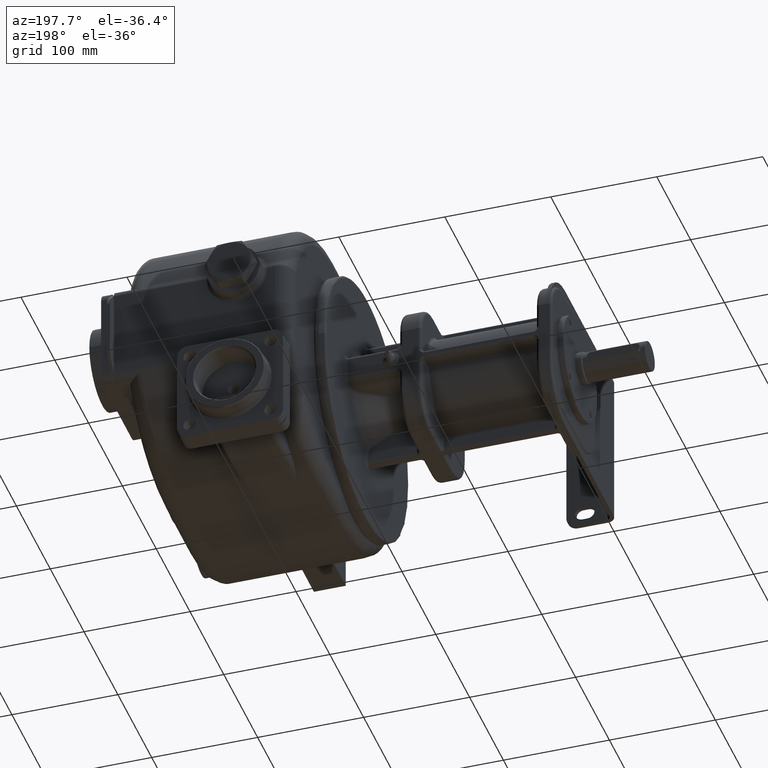
[diagram: clean part render]
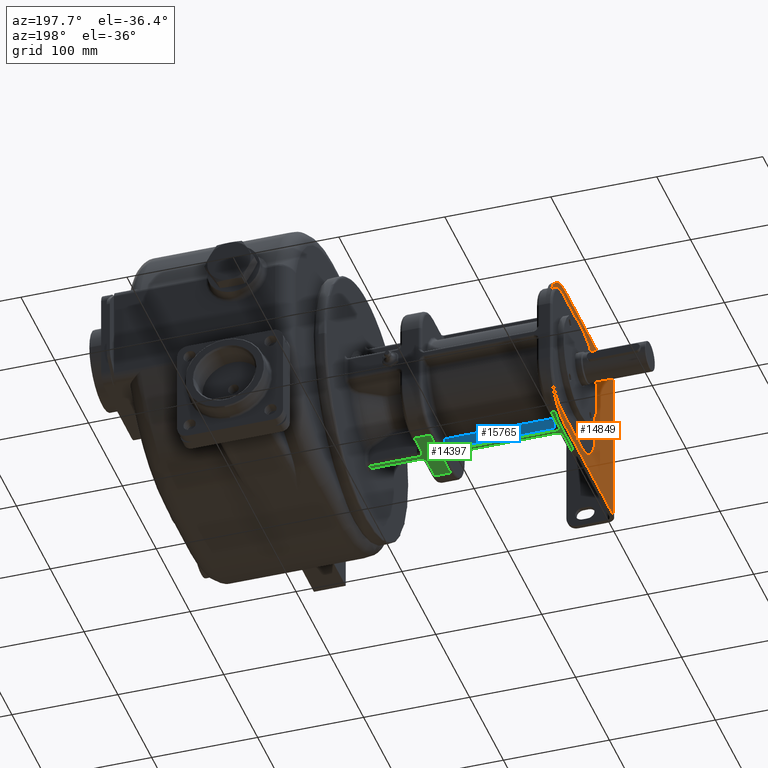
[diagram: same view with three faces highlighted in distinct colors, each labeled with its STEP entity id]
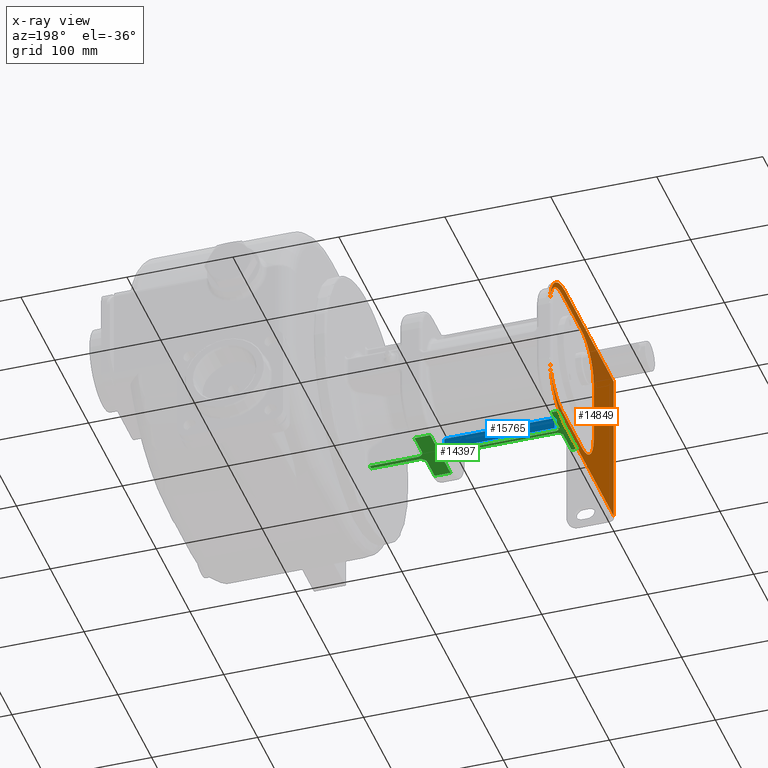
[diagram: x-ray of the same camera — body ghosted, the three highlighted faces saturated]
A machine part, auxiliary view with three faces highlighted in distinct colors.
The next image is the same camera in x-ray (body ghosted, the three faces saturated) — at least one of them is partly hidden behind the body in this view.
Their STEP definitions:

[orange] entity #14849 — the highlighted planar face has unit normal (1, 0, 0).
#1172=DIRECTION('',(0.E0,1.597536917567E-14,1.E0));
#1173=VECTOR('',#1172,1.5E2);
#1174=CARTESIAN_POINT('',(-2.705E2,7.999999999998E0,-7.5E1));
#1175=LINE('',#1174,#1173);
#1347=CARTESIAN_POINT('',(-2.705E2,1.52E2,-3.E1));
#1348=DIRECTION('',(1.E0,0.E0,0.E0));
#1349=DIRECTION('',(0.E0,-2.336896108722E-14,-1.E0));
#1350=AXIS2_PLACEMENT_3D('',#1347,#1348,#1349);
#1352=DIRECTION('',(0.E0,0.E0,1.E0));
#1353=VECTOR('',#1352,6.E1);
#1354=CARTESIAN_POINT('',(-2.705E2,1.97E2,-3.E1));
#1355=LINE('',#1354,#1353);
#1356=CARTESIAN_POINT('',(-2.705E2,1.52E2,3.E1));
#1357=DIRECTION('',(1.E0,0.E0,0.E0));
#1358=DIRECTION('',(0.E0,1.E0,-1.594773695817E-14));
#1359=AXIS2_PLACEMENT_3D('',#1356,#1357,#1358);
#1361=DIRECTION('',(0.E0,-1.E0,1.588852506352E-14));
#1362=VECTOR('',#1361,1.44E2);
#1363=CARTESIAN_POINT('',(-2.705E2,1.52E2,7.5E1));
#1364=LINE('',#1363,#1362);
#1365=DIRECTION('',(0.E0,1.E0,-1.588852506352E-14));
#1366=VECTOR('',#1365,1.44E2);
#1367=CARTESIAN_POINT('',(-2.705E2,7.999999999998E0,-7.5E1));
#1368=LINE('',#1367,#1366);
#1369=DIRECTION('',(0.E0,1.634248292248E-14,1.E0));
#1370=VECTOR('',#1369,6.E1);
#1371=CARTESIAN_POINT('',(-2.705E2,6.717157287525E1,-3.E1));
#1372=LINE('',#1371,#1370);
#1378=CARTESIAN_POINT('',(-2.705E2,1.02E2,-3.E1));
#1379=DIRECTION('',(-1.E0,0.E0,0.E0));
#1380=DIRECTION('',(0.E0,4.447468036409E-14,-1.E0));
#1381=AXIS2_PLACEMENT_3D('',#1378,#1379,#1380);
#1388=DIRECTION('',(0.E0,-1.E0,1.586878776531E-14));
#1389=VECTOR('',#1388,6.E1);
#1390=CARTESIAN_POINT('',(-2.705E2,1.62E2,-6.482842712475E1));
#1391=LINE('',#1390,#1389);
#1397=CARTESIAN_POINT('',(-2.705E2,1.62E2,-3.E1));
#1398=DIRECTION('',(-1.E0,0.E0,0.E0));
#1399=DIRECTION('',(0.E0,1.E0,4.427066806884E-14));
#1400=AXIS2_PLACEMENT_3D('',#1397,#1398,#1399);
#1407=DIRECTION('',(0.E0,-1.515824502955E-14,-1.E0));
#1408=VECTOR('',#1407,6.E1);
#1409=CARTESIAN_POINT('',(-2.705E2,1.968284271247E2,3.E1));
#1410=LINE('',#1409,#1408);
#1416=CARTESIAN_POINT('',(-2.705E2,1.62E2,3.E1));
#1417=DIRECTION('',(-1.E0,0.E0,0.E0));
#1418=DIRECTION('',(0.E0,1.632098361985E-14,1.E0));
#1419=AXIS2_PLACEMENT_3D('',#1416,#1417,#1418);
#1426=DIRECTION('',(0.E0,1.E0,-1.586878776531E-14));
#1427=VECTOR('',#1426,6.E1);
#1428=CARTESIAN_POINT('',(-2.705E2,1.02E2,6.482842712475E1));
#1429=LINE('',#1428,#1427);
#1435=CARTESIAN_POINT('',(-2.705E2,1.02E2,3.E1));
#1436=DIRECTION('',(-1.E0,0.E0,0.E0));
#1437=DIRECTION('',(0.E0,-1.E0,4.610677872607E-14));
#1438=AXIS2_PLACEMENT_3D('',#1435,#1436,#1437);
#13416=CARTESIAN_POINT('',(-2.705E2,1.52E2,-7.5E1));
#13418=VERTEX_POINT('',#13416);
#13423=CARTESIAN_POINT('',(-2.705E2,7.999999999998E0,-7.5E1));
#13424=VERTEX_POINT('',#13423);
#13425=CARTESIAN_POINT('',(-2.705E2,8.000000000001E0,7.5E1));
#13426=VERTEX_POINT('',#13425);
#13427=CARTESIAN_POINT('',(-2.705E2,1.52E2,7.5E1));
#13428=VERTEX_POINT('',#13427);
#13471=CARTESIAN_POINT('',(-2.705E2,1.97E2,-3.E1));
#13472=VERTEX_POINT('',#13471);
#13473=CARTESIAN_POINT('',(-2.705E2,1.97E2,3.E1));
#13474=VERTEX_POINT('',#13473);
#13507=CARTESIAN_POINT('',(-2.705E2,6.717157287525E1,-3.E1));
#13508=CARTESIAN_POINT('',(-2.705E2,6.717157287525E1,3.E1));
#13509=VERTEX_POINT('',#13507);
#13510=VERTEX_POINT('',#13508);
#13511=CARTESIAN_POINT('',(-2.705E2,1.02E2,-6.482842712475E1));
#13512=VERTEX_POINT('',#13511);
#13513=CARTESIAN_POINT('',(-2.705E2,1.62E2,-6.482842712475E1));
#13514=VERTEX_POINT('',#13513);
#13515=CARTESIAN_POINT('',(-2.705E2,1.968284271247E2,-3.E1));
#13516=VERTEX_POINT('',#13515);
#13517=CARTESIAN_POINT('',(-2.705E2,1.968284271247E2,3.E1));
#13518=VERTEX_POINT('',#13517);
#13519=CARTESIAN_POINT('',(-2.705E2,1.62E2,6.482842712475E1));
#13520=VERTEX_POINT('',#13519);
#13521=CARTESIAN_POINT('',(-2.705E2,1.02E2,6.482842712475E1));
#13522=VERTEX_POINT('',#13521);
#14818=CARTESIAN_POINT('',(-2.705E2,1.32E2,0.E0));
#14819=DIRECTION('',(1.E0,0.E0,0.E0));
#14820=DIRECTION('',(0.E0,-1.598721155460E-14,-1.E0));
#14821=AXIS2_PLACEMENT_3D('',#14818,#14819,#14820);
#14822=PLANE('',#14821);
#14823=ORIENTED_EDGE('',*,*,#14811,.T.);
#14824=ORIENTED_EDGE('',*,*,#14501,.T.);
#14825=ORIENTED_EDGE('',*,*,#14572,.T.);
#14826=ORIENTED_EDGE('',*,*,#14585,.T.);
#14827=ORIENTED_EDGE('',*,*,#14615,.F.);
#14828=ORIENTED_EDGE('',*,*,#14799,.T.);
#14829=EDGE_LOOP('',(#14823,#14824,#14825,#14826,#14827,#14828));
#14830=FACE_OUTER_BOUND('',#14829,.F.);
#14832=ORIENTED_EDGE('',*,*,#14831,.T.);
#14834=ORIENTED_EDGE('',*,*,#14833,.T.);
#14836=ORIENTED_EDGE('',*,*,#14835,.T.);
#14838=ORIENTED_EDGE('',*,*,#14837,.T.);
#14840=ORIENTED_EDGE('',*,*,#14839,.T.);
#14842=ORIENTED_EDGE('',*,*,#14841,.T.);
#14844=ORIENTED_EDGE('',*,*,#14843,.T.);
#14846=ORIENTED_EDGE('',*,*,#14845,.T.);
#14847=EDGE_LOOP('',(#14832,#14834,#14836,#14838,#14840,#14842,#14844,#14846));
#14848=FACE_BOUND('',#14847,.F.);
#14849=ADVANCED_FACE('',(#14830,#14848),#14822,.F.);
#1351=CIRCLE('',#1350,4.5E1);
#1360=CIRCLE('',#1359,4.5E1);
#1382=CIRCLE('',#1381,3.482842712475E1);
#1401=CIRCLE('',#1400,3.482842712475E1);
#1420=CIRCLE('',#1419,3.482842712475E1);
#1439=CIRCLE('',#1438,3.482842712475E1);
#14501=EDGE_CURVE('',#13472,#13474,#1355,.T.);
#14572=EDGE_CURVE('',#13474,#13428,#1360,.T.);
#14585=EDGE_CURVE('',#13428,#13426,#1364,.T.);
#14615=EDGE_CURVE('',#13424,#13426,#1175,.T.);
#14799=EDGE_CURVE('',#13424,#13418,#1368,.T.);
#14811=EDGE_CURVE('',#13418,#13472,#1351,.T.);
#14831=EDGE_CURVE('',#13509,#13510,#1372,.T.);
#14833=EDGE_CURVE('',#13510,#13522,#1439,.T.);
#14835=EDGE_CURVE('',#13522,#13520,#1429,.T.);
#14837=EDGE_CURVE('',#13520,#13518,#1420,.T.);
#14839=EDGE_CURVE('',#13518,#13516,#1410,.T.);
#14841=EDGE_CURVE('',#13516,#13514,#1401,.T.);
#14843=EDGE_CURVE('',#13514,#13512,#1391,.T.);
#14845=EDGE_CURVE('',#13512,#13509,#1382,.T.);

[blue] entity #15765 — the highlighted planar face has unit normal (0, -1, 0).
#2107=CARTESIAN_POINT('',(-1.465E2,1.355E2,-6.2E1));
#2108=DIRECTION('',(0.E0,-1.E0,1.598721155460E-14));
#2109=DIRECTION('',(-1.E0,0.E0,0.E0));
#2110=AXIS2_PLACEMENT_3D('',#2107,#2108,#2109);
#2112=DIRECTION('',(0.E0,-1.530327959279E-14,-1.E0));
#2113=VECTOR('',#2112,9.286149827583E0);
#2114=CARTESIAN_POINT('',(-1.515E2,1.355E2,-5.271385017242E1));
#2115=LINE('',#2114,#2113);
#2116=CARTESIAN_POINT('',(-1.525E2,1.355E2,-5.170831654579E1));
#2117=CARTESIAN_POINT('',(-1.524782581544E2,1.355E2,-5.170831662245E1));
#2118=CARTESIAN_POINT('',(-1.524348641030E2,1.355E2,-5.170973848553E1));
#2119=CARTESIAN_POINT('',(-1.523698800143E2,1.355E2,-5.171614602046E1));
#2120=CARTESIAN_POINT('',(-1.523054887060E2,1.355E2,-5.172679679101E1));
#2121=CARTESIAN_POINT('',(-1.522418932856E2,1.355E2,-5.174165202574E1));
#2122=CARTESIAN_POINT('',(-1.521793893363E2,1.355E2,-5.176064895303E1));
#2123=CARTESIAN_POINT('',(-1.521182301524E2,1.355E2,-5.178371247166E1));
#2124=CARTESIAN_POINT('',(-1.520586787359E2,1.355E2,-5.181074830781E1));
#2125=CARTESIAN_POINT('',(-1.520009871171E2,1.355E2,-5.184164670597E1));
#2126=CARTESIAN_POINT('',(-1.519454023308E2,1.355E2,-5.187628109834E1));
#2127=CARTESIAN_POINT('',(-1.518921629714E2,1.355E2,-5.191450906962E1));
#2128=CARTESIAN_POINT('',(-1.518414989546E2,1.355E2,-5.195617246611E1));
#2129=CARTESIAN_POINT('',(-1.517936301902E2,1.355E2,-5.200109794448E1));
#2130=CARTESIAN_POINT('',(-1.517487655520E2,1.355E2,-5.204909753659E1));
#2131=CARTESIAN_POINT('',(-1.517071018958E2,1.355E2,-5.209996920257E1));
#2132=CARTESIAN_POINT('',(-1.516688229807E2,1.355E2,-5.215349760498E1));
#2133=CARTESIAN_POINT('',(-1.516340984819E2,1.355E2,-5.220945488991E1));
#2134=CARTESIAN_POINT('',(-1.516030829776E2,1.355E2,-5.226760181405E1));
#2135=CARTESIAN_POINT('',(-1.515759152750E2,1.355E2,-5.232768804121E1));
#2136=CARTESIAN_POINT('',(-1.515527169927E2,1.355E2,-5.238945548466E1));
#2137=CARTESIAN_POINT('',(-1.515335932746E2,1.355E2,-5.245263292802E1));
#2138=CARTESIAN_POINT('',(-1.515186289083E2,1.355E2,-5.251695589187E1));
#2139=CARTESIAN_POINT('',(-1.515078942408E2,1.355E2,-5.258211758478E1));
#2140=CARTESIAN_POINT('',(-1.515014341365E2,1.355E2,-5.264789914491E1));
#2141=CARTESIAN_POINT('',(-1.515000000770E2,1.355E2,-5.269183453651E1));
#2142=CARTESIAN_POINT('',(-1.515E2,1.355E2,-5.271385017242E1));
#2144=DIRECTION('',(1.E0,0.E0,0.E0));
#2145=VECTOR('',#2144,1.02E2);
#2146=CARTESIAN_POINT('',(-2.545E2,1.355E2,-5.170831654579E1));
#2147=LINE('',#2146,#2145);
#2148=CARTESIAN_POINT('',(-2.555E2,1.355E2,-5.271385017242E1));
#2149=CARTESIAN_POINT('',(-2.554999999241E2,1.355E2,-5.269183456945E1));
#2150=CARTESIAN_POINT('',(-2.554985658649E2,1.355E2,-5.264789923762E1));
#2151=CARTESIAN_POINT('',(-2.554921057953E2,1.355E2,-5.258211786401E1));
#2152=CARTESIAN_POINT('',(-2.554813711363E2,1.355E2,-5.251695610908E1));
#2153=CARTESIAN_POINT('',(-2.554664067854E2,1.355E2,-5.245263315271E1));
#2154=CARTESIAN_POINT('',(-2.554472830812E2,1.355E2,-5.238945570093E1));
#2155=CARTESIAN_POINT('',(-2.554240848111E2,1.355E2,-5.232768824866E1));
#2156=CARTESIAN_POINT('',(-2.553969171214E2,1.355E2,-5.226760201436E1));
#2157=CARTESIAN_POINT('',(-2.553659016272E2,1.355E2,-5.220945507887E1));
#2158=CARTESIAN_POINT('',(-2.553311771423E2,1.355E2,-5.215349778890E1));
#2159=CARTESIAN_POINT('',(-2.552928982291E2,1.355E2,-5.209996936510E1));
#2160=CARTESIAN_POINT('',(-2.552512345931E2,1.355E2,-5.204909770455E1));
#2161=CARTESIAN_POINT('',(-2.552063700220E2,1.355E2,-5.200109815847E1));
#2162=CARTESIAN_POINT('',(-2.551585012599E2,1.355E2,-5.195617265378E1));
#2163=CARTESIAN_POINT('',(-2.551078372405E2,1.355E2,-5.191450923281E1));
#2164=CARTESIAN_POINT('',(-2.550545978956E2,1.355E2,-5.187628125026E1));
#2165=CARTESIAN_POINT('',(-2.549990131135E2,1.355E2,-5.184164683958E1));
#2166=CARTESIAN_POINT('',(-2.549413215019E2,1.355E2,-5.181074842562E1));
#2167=CARTESIAN_POINT('',(-2.548817700887E2,1.355E2,-5.178371257202E1));
#2168=CARTESIAN_POINT('',(-2.548206109094E2,1.355E2,-5.176064903711E1));
#2169=CARTESIAN_POINT('',(-2.547581069635E2,1.355E2,-5.174165209250E1));
#2170=CARTESIAN_POINT('',(-2.546945115314E2,1.355E2,-5.172679683970E1));
#2171=CARTESIAN_POINT('',(-2.546301202794E2,1.355E2,-5.171614605849E1));
#2172=CARTESIAN_POINT('',(-2.545651359959E2,1.355E2,-5.170973848710E1));
#2173=CARTESIAN_POINT('',(-2.545217418805E2,1.355E2,-5.170831662350E1));
#2174=CARTESIAN_POINT('',(-2.545E2,1.355E2,-5.170831654579E1));
#2176=DIRECTION('',(0.E0,1.530327959279E-14,1.E0));
#2177=VECTOR('',#2176,9.286149827583E0);
#2178=CARTESIAN_POINT('',(-2.555E2,1.355E2,-6.2E1));
#2179=LINE('',#2178,#2177);
#2180=CARTESIAN_POINT('',(-2.605E2,1.355E2,-6.2E1));
#2181=DIRECTION('',(0.E0,-1.E0,1.598721155460E-14));
#2182=DIRECTION('',(9.797958972550E-1,0.E0,-1.999999993055E-1));
#2183=AXIS2_PLACEMENT_3D('',#2180,#2181,#2182);
#2185=DIRECTION('',(-1.E0,5.493847008595E-12,0.E0));
#2186=VECTOR('',#2185,1.042020410200E2);
#2187=CARTESIAN_POINT('',(-1.513989794900E2,1.355000000110E2,-6.3E1));
#2188=LINE('',#2187,#2186);
#13182=CARTESIAN_POINT('',(-1.515E2,1.355E2,-5.271385017242E1));
#13183=CARTESIAN_POINT('',(-1.515E2,1.355E2,-6.2E1));
#13184=VERTEX_POINT('',#13182);
#13185=VERTEX_POINT('',#13183);
#13189=CARTESIAN_POINT('',(-2.545E2,1.355E2,-5.170831654579E1));
#13190=CARTESIAN_POINT('',(-1.525E2,1.355E2,-5.170831654579E1));
#13191=VERTEX_POINT('',#13189);
#13192=VERTEX_POINT('',#13190);
#13196=CARTESIAN_POINT('',(-2.555E2,1.355E2,-6.2E1));
#13197=CARTESIAN_POINT('',(-2.555E2,1.355E2,-5.271385017242E1));
#13198=VERTEX_POINT('',#13196);
#13199=VERTEX_POINT('',#13197);
#13250=CARTESIAN_POINT('',(-1.513989794863E2,1.355E2,-6.299999999652E1));
#13251=VERTEX_POINT('',#13250);
#13278=CARTESIAN_POINT('',(-2.556010205137E2,1.355E2,-6.299999999653E1));
#13279=VERTEX_POINT('',#13278);
#15743=CARTESIAN_POINT('',(-2.07E2,1.355E2,-6.798738169020E-14));
#15744=DIRECTION('',(0.E0,-1.E0,1.592597921464E-14));
#15745=DIRECTION('',(1.E0,0.E0,0.E0));
#15746=AXIS2_PLACEMENT_3D('',#15743,#15744,#15745);
#15747=PLANE('',#15746);
#15749=ORIENTED_EDGE('',*,*,#15748,.F.);
#15751=ORIENTED_EDGE('',*,*,#15750,.F.);
#15753=ORIENTED_EDGE('',*,*,#15752,.F.);
#15755=ORIENTED_EDGE('',*,*,#15754,.F.);
#15757=ORIENTED_EDGE('',*,*,#15756,.F.);
#15759=ORIENTED_EDGE('',*,*,#15758,.F.);
#15760=ORIENTED_EDGE('',*,*,#15733,.F.);
#15762=ORIENTED_EDGE('',*,*,#15761,.F.);
#15763=EDGE_LOOP('',(#15749,#15751,#15753,#15755,#15757,#15759,#15760,#15762));
#15764=FACE_OUTER_BOUND('',#15763,.F.);
#15765=ADVANCED_FACE('',(#15764),#15747,.F.);
#2111=CIRCLE('',#2110,5.E0);
#2143=B_SPLINE_CURVE_WITH_KNOTS('',3,(#2116,#2117,#2118,#2119,#2120,#2121,#2122,
#2123,#2124,#2125,#2126,#2127,#2128,#2129,#2130,#2131,#2132,#2133,#2134,#2135,
#2136,#2137,#2138,#2139,#2140,#2141,#2142),.UNSPECIFIED.,.F.,.F.,(4,1,1,1,1,1,1,
1,1,1,1,1,1,1,1,1,1,1,1,1,1,1,1,1,4),(0.E0,4.166666666667E-2,8.333333333333E-2,
1.25E-1,1.666666666667E-1,2.083333333333E-1,2.5E-1,2.916666666667E-1,
3.333333333333E-1,3.75E-1,4.166666666667E-1,4.583333333333E-1,5.E-1,
5.416666666667E-1,5.833333333333E-1,6.25E-1,6.666666666667E-1,7.083333333333E-1,
7.5E-1,7.916666666667E-1,8.333333333333E-1,8.75E-1,9.166666666667E-1,
9.583333333333E-1,1.E0),.UNSPECIFIED.);
#2175=B_SPLINE_CURVE_WITH_KNOTS('',3,(#2148,#2149,#2150,#2151,#2152,#2153,#2154,
#2155,#2156,#2157,#2158,#2159,#2160,#2161,#2162,#2163,#2164,#2165,#2166,#2167,
#2168,#2169,#2170,#2171,#2172,#2173,#2174),.UNSPECIFIED.,.F.,.F.,(4,1,1,1,1,1,1,
1,1,1,1,1,1,1,1,1,1,1,1,1,1,1,1,1,4),(0.E0,4.166666666667E-2,8.333333333333E-2,
1.25E-1,1.666666666667E-1,2.083333333333E-1,2.5E-1,2.916666666667E-1,
3.333333333333E-1,3.75E-1,4.166666666667E-1,4.583333333333E-1,5.E-1,
5.416666666667E-1,5.833333333333E-1,6.25E-1,6.666666666667E-1,7.083333333333E-1,
7.5E-1,7.916666666667E-1,8.333333333333E-1,8.75E-1,9.166666666667E-1,
9.583333333333E-1,1.E0),.UNSPECIFIED.);
#2184=CIRCLE('',#2183,5.E0);
#15733=EDGE_CURVE('',#13279,#13198,#2184,.T.);
#15748=EDGE_CURVE('',#13185,#13251,#2111,.T.);
#15750=EDGE_CURVE('',#13184,#13185,#2115,.T.);
#15752=EDGE_CURVE('',#13192,#13184,#2143,.T.);
#15754=EDGE_CURVE('',#13191,#13192,#2147,.T.);
#15756=EDGE_CURVE('',#13199,#13191,#2175,.T.);
#15758=EDGE_CURVE('',#13198,#13199,#2179,.T.);
#15761=EDGE_CURVE('',#13251,#13279,#2188,.T.);

[green] entity #14397 — the highlighted planar face has unit normal (0, 0, -1).
#245=DIRECTION('',(0.E0,1.E0,-1.102066284036E-14));
#246=VECTOR('',#245,2.45E1);
#247=CARTESIAN_POINT('',(-1.465E2,1.02E2,-6.5E1));
#248=LINE('',#247,#246);
#576=DIRECTION('',(0.E0,-1.E0,1.160069772670E-14));
#577=VECTOR('',#576,2.45E1);
#578=CARTESIAN_POINT('',(-2.605E2,1.265E2,-6.5E1));
#579=LINE('',#578,#577);
#585=DIRECTION('',(0.E0,-1.E0,0.E0));
#586=VECTOR('',#585,6.000000000002E1);
#587=CARTESIAN_POINT('',(-2.665E2,1.62E2,-6.5E1));
#588=LINE('',#587,#586);
#589=CARTESIAN_POINT('',(-2.605E2,1.265E2,-6.5E1));
#590=CARTESIAN_POINT('',(-2.604182547031E2,1.266634909598E2,-6.499999879545E1));
#591=CARTESIAN_POINT('',(-2.602631731254E2,1.269732178097E2,-6.500000055903E1));
#592=CARTESIAN_POINT('',(-2.600470038275E2,1.273840061154E2,-6.499999985021E1));
#593=CARTESIAN_POINT('',(-2.598480416598E2,1.277343880913E2,-6.500000004014E1));
#594=CARTESIAN_POINT('',(-2.596643927898E2,1.280315606032E2,-6.499999998925E1));
#595=CARTESIAN_POINT('',(-2.594889619837E2,1.282919299203E2,-6.500000000288E1));
#596=CARTESIAN_POINT('',(-2.593180421730E2,1.285244223210E2,-6.499999999923E1));
#597=CARTESIAN_POINT('',(-2.591488410167E2,1.287354172071E2,-6.500000000021E1));
#598=CARTESIAN_POINT('',(-2.589794571532E2,1.289290228906E2,-6.499999999994E1));
#599=CARTESIAN_POINT('',(-2.588089690379E2,1.291075678456E2,-6.500000000001E1));
#600=CARTESIAN_POINT('',(-2.586366739100E2,1.292727667299E2,-6.5E1));
#601=CARTESIAN_POINT('',(-2.584621852719E2,1.294257411037E2,-6.5E1));
#602=CARTESIAN_POINT('',(-2.582852648170E2,1.295672996332E2,-6.5E1));
#603=CARTESIAN_POINT('',(-2.581058046579E2,1.296980105987E2,-6.5E1));
#604=CARTESIAN_POINT('',(-2.579237848516E2,1.298182817060E2,-6.5E1));
#605=CARTESIAN_POINT('',(-2.577392567426E2,1.299284030574E2,-6.5E1));
#606=CARTESIAN_POINT('',(-2.575523291172E2,1.300285797303E2,-6.5E1));
#607=CARTESIAN_POINT('',(-2.573631578686E2,1.301189565223E2,-6.5E1));
#608=CARTESIAN_POINT('',(-2.571719390037E2,1.301996339311E2,-6.499999999999E1));
#609=CARTESIAN_POINT('',(-2.569788980672E2,1.302706825538E2,-6.500000000002E1));
#610=CARTESIAN_POINT('',(-2.567842909096E2,1.303321508085E2,-6.499999999991E1));
#611=CARTESIAN_POINT('',(-2.565883979946E2,1.303840742784E2,-6.500000000035E1));
#612=CARTESIAN_POINT('',(-2.563915030891E2,1.304264852449E2,-6.499999999870E1));
#613=CARTESIAN_POINT('',(-2.561939541262E2,1.304594038068E2,-6.500000000485E1));
#614=CARTESIAN_POINT('',(-2.559960616154E2,1.304828663736E2,-6.499999998192E1));
#615=CARTESIAN_POINT('',(-2.557981606828E2,1.304968998557E2,-6.500000006748E1));
#616=CARTESIAN_POINT('',(-2.556666834676E2,1.304999998010E2,-6.499999985459E1));
#617=CARTESIAN_POINT('',(-2.556010205144E2,1.305E2,-6.499999997601E1));
#619=DIRECTION('',(1.E0,0.E0,1.395132199097E-11));
#620=VECTOR('',#619,1.042020410289E2);
#621=CARTESIAN_POINT('',(-2.556010205144E2,1.305E2,-6.499999997601E1));
#622=LINE('',#621,#620);
#623=CARTESIAN_POINT('',(-1.513989794856E2,1.305E2,-6.499999997456E1));
#624=CARTESIAN_POINT('',(-1.513333200221E2,1.304999997990E2,-6.499999985100E1));
#625=CARTESIAN_POINT('',(-1.512018497458E2,1.304969001995E2,-6.500000006915E1));
#626=CARTESIAN_POINT('',(-1.510039585526E2,1.304828681239E2,-6.499999998147E1));
#627=CARTESIAN_POINT('',(-1.508060767545E2,1.304594080271E2,-6.500000000496E1));
#628=CARTESIAN_POINT('',(-1.506085392158E2,1.304264931339E2,-6.499999999867E1));
#629=CARTESIAN_POINT('',(-1.504116551596E2,1.303840868531E2,-6.500000000036E1));
#630=CARTESIAN_POINT('',(-1.502157730048E2,1.303321691758E2,-6.499999999990E1));
#631=CARTESIAN_POINT('',(-1.500211763642E2,1.302707078017E2,-6.500000000003E1));
#632=CARTESIAN_POINT('',(-1.498281456602E2,1.301996671541E2,-6.499999999999E1));
#633=CARTESIAN_POINT('',(-1.496369367142E2,1.301189988346E2,-6.5E1));
#634=CARTESIAN_POINT('',(-1.494477750507E2,1.300286322748E2,-6.5E1));
#635=CARTESIAN_POINT('',(-1.492608566506E2,1.299284670174E2,-6.5E1));
#636=CARTESIAN_POINT('',(-1.490763374168E2,1.298183583061E2,-6.5E1));
#637=CARTESIAN_POINT('',(-1.488943261492E2,1.296981011448E2,-6.5E1));
#638=CARTESIAN_POINT('',(-1.487148742240E2,1.295674055512E2,-6.5E1));
#639=CARTESIAN_POINT('',(-1.485379617638E2,1.294258640059E2,-6.5E1));
#640=CARTESIAN_POINT('',(-1.483634809442E2,1.292729084298E2,-6.5E1));
#641=CARTESIAN_POINT('',(-1.481911938408E2,1.291077307758E2,-6.500000000001E1));
#642=CARTESIAN_POINT('',(-1.480207134231E2,1.289292091399E2,-6.499999999994E1));
#643=CARTESIAN_POINT('',(-1.478513396380E2,1.287356325058E2,-6.500000000021E1));
#644=CARTESIAN_POINT('',(-1.476821459502E2,1.285246669827E2,-6.499999999923E1));
#645=CARTESIAN_POINT('',(-1.475112429191E2,1.282922198404E2,-6.500000000287E1));
#646=CARTESIAN_POINT('',(-1.473358335280E2,1.280319122157E2,-6.499999998928E1));
#647=CARTESIAN_POINT('',(-1.471521342776E2,1.277346887541E2,-6.500000004001E1));
#648=CARTESIAN_POINT('',(-1.469531127541E2,1.273842228998E2,-6.499999985067E1));
#649=CARTESIAN_POINT('',(-1.467368869461E2,1.269733375705E2,-6.500000055730E1));
#650=CARTESIAN_POINT('',(-1.465817660809E2,1.266635325279E2,-6.499999879918E1));
#651=CARTESIAN_POINT('',(-1.465E2,1.265E2,-6.5E1));
#653=DIRECTION('',(1.E0,2.804275330467E-13,0.E0));
#654=VECTOR('',#653,1.5E1);
#655=CARTESIAN_POINT('',(-1.465E2,1.02E2,-6.5E1));
#656=LINE('',#655,#654);
#657=DIRECTION('',(9.521272659331E-13,1.E0,0.E0));
#658=VECTOR('',#657,2.199999999966E1);
#659=CARTESIAN_POINT('',(-1.315E2,1.02E2,-6.5E1));
#660=LINE('',#659,#658);
#661=CARTESIAN_POINT('',(-1.255E2,1.24E2,-6.5E1));
#662=DIRECTION('',(0.E0,0.E0,1.E0));
#663=DIRECTION('',(1.657933050107E-14,1.E0,0.E0));
#664=AXIS2_PLACEMENT_3D('',#661,#662,#663);
#666=DIRECTION('',(-1.E0,-4.148306389764E-12,0.E0));
#667=VECTOR('',#666,4.499999999988E1);
#668=CARTESIAN_POINT('',(-8.05E1,1.300000000002E2,-6.5E1));
#669=LINE('',#668,#667);
#670=DIRECTION('',(0.E0,-1.E0,0.E0));
#671=VECTOR('',#670,3.999999999809E0);
#672=CARTESIAN_POINT('',(-8.05E1,1.34E2,-6.5E1));
#673=LINE('',#672,#671);
#674=DIRECTION('',(-1.E0,1.263818679347E-12,0.E0));
#675=VECTOR('',#674,4.499999999969E1);
#676=CARTESIAN_POINT('',(-8.05E1,1.34E2,-6.5E1));
#677=LINE('',#676,#675);
#678=CARTESIAN_POINT('',(-1.255E2,1.4E2,-6.5E1));
#679=DIRECTION('',(0.E0,0.E0,-1.E0));
#680=DIRECTION('',(0.E0,-1.E0,0.E0));
#681=AXIS2_PLACEMENT_3D('',#678,#679,#680);
#683=DIRECTION('',(-9.637543288807E-13,1.E0,0.E0));
#684=VECTOR('',#683,2.199999999969E1);
#685=CARTESIAN_POINT('',(-1.315E2,1.400000000003E2,-6.5E1));
#686=LINE('',#685,#684);
#687=DIRECTION('',(-1.E0,6.859105875871E-13,-2.936909974475E-14));
#688=VECTOR('',#687,1.5E1);
#689=CARTESIAN_POINT('',(-1.315E2,1.62E2,-6.5E1));
#690=LINE('',#689,#688);
#691=CARTESIAN_POINT('',(-1.465E2,1.375E2,-6.5E1));
#692=CARTESIAN_POINT('',(-1.465817452969E2,1.373365090402E2,-6.499999879545E1));
#693=CARTESIAN_POINT('',(-1.467368268746E2,1.370267821903E2,-6.500000055903E1));
#694=CARTESIAN_POINT('',(-1.469529961725E2,1.366159938846E2,-6.499999985021E1));
#695=CARTESIAN_POINT('',(-1.471519583402E2,1.362656119087E2,-6.500000004014E1));
#696=CARTESIAN_POINT('',(-1.473356072102E2,1.359684393968E2,-6.499999998925E1));
#697=CARTESIAN_POINT('',(-1.475110380163E2,1.357080700796E2,-6.500000000288E1));
#698=CARTESIAN_POINT('',(-1.476819578270E2,1.354755776790E2,-6.499999999923E1));
#699=CARTESIAN_POINT('',(-1.478511589833E2,1.352645827929E2,-6.500000000021E1));
#700=CARTESIAN_POINT('',(-1.480205428468E2,1.350709771094E2,-6.499999999994E1));
#701=CARTESIAN_POINT('',(-1.481910309621E2,1.348924321544E2,-6.500000000001E1));
#702=CARTESIAN_POINT('',(-1.483633260900E2,1.347272332701E2,-6.5E1));
#703=CARTESIAN_POINT('',(-1.485378147281E2,1.345742588963E2,-6.5E1));
#704=CARTESIAN_POINT('',(-1.487147351830E2,1.344327003668E2,-6.5E1));
#705=CARTESIAN_POINT('',(-1.488941953421E2,1.343019894013E2,-6.5E1));
#706=CARTESIAN_POINT('',(-1.490762151484E2,1.341817182940E2,-6.5E1));
#707=CARTESIAN_POINT('',(-1.492607432574E2,1.340715969426E2,-6.5E1));
#708=CARTESIAN_POINT('',(-1.494476708828E2,1.339714202697E2,-6.5E1));
#709=CARTESIAN_POINT('',(-1.496368421314E2,1.338810434777E2,-6.5E1));
#710=CARTESIAN_POINT('',(-1.498280609963E2,1.338003660689E2,-6.499999999999E1));
#711=CARTESIAN_POINT('',(-1.500211019328E2,1.337293174462E2,-6.500000000002E1));
#712=CARTESIAN_POINT('',(-1.502157090904E2,1.336678491915E2,-6.499999999991E1));
#713=CARTESIAN_POINT('',(-1.504116020054E2,1.336159257216E2,-6.500000000035E1));
#714=CARTESIAN_POINT('',(-1.506084969109E2,1.335735147551E2,-6.499999999870E1));
#715=CARTESIAN_POINT('',(-1.508060458738E2,1.335405961932E2,-6.500000000485E1));
#716=CARTESIAN_POINT('',(-1.510039383846E2,1.335171336264E2,-6.499999998192E1));
#717=CARTESIAN_POINT('',(-1.512018393172E2,1.335031001443E2,-6.500000006748E1));
#718=CARTESIAN_POINT('',(-1.513333165324E2,1.335000001990E2,-6.499999985459E1));
#719=CARTESIAN_POINT('',(-1.513989794856E2,1.335E2,-6.499999997601E1));
#721=DIRECTION('',(-1.E0,0.E0,1.395118561308E-11));
#722=VECTOR('',#721,1.042020410289E2);
#723=CARTESIAN_POINT('',(-1.513989794856E2,1.335E2,-6.499999997601E1));
#724=LINE('',#723,#722);
#725=CARTESIAN_POINT('',(-2.556010205144E2,1.335E2,-6.499999997456E1));
#726=CARTESIAN_POINT('',(-2.556666799779E2,1.335000002010E2,-6.499999985100E1));
#727=CARTESIAN_POINT('',(-2.557981502542E2,1.335030998005E2,-6.500000006915E1));
#728=CARTESIAN_POINT('',(-2.559960414474E2,1.335171318761E2,-6.499999998147E1));
#729=CARTESIAN_POINT('',(-2.561939232455E2,1.335405919729E2,-6.500000000496E1));
#730=CARTESIAN_POINT('',(-2.563914607842E2,1.335735068661E2,-6.499999999867E1));
#731=CARTESIAN_POINT('',(-2.565883448404E2,1.336159131469E2,-6.500000000036E1));
#732=CARTESIAN_POINT('',(-2.567842269952E2,1.336678308242E2,-6.499999999990E1));
#733=CARTESIAN_POINT('',(-2.569788236358E2,1.337292921983E2,-6.500000000003E1));
#734=CARTESIAN_POINT('',(-2.571718543398E2,1.338003328459E2,-6.499999999999E1));
#735=CARTESIAN_POINT('',(-2.573630632858E2,1.338810011654E2,-6.5E1));
#736=CARTESIAN_POINT('',(-2.575522249493E2,1.339713677252E2,-6.5E1));
#737=CARTESIAN_POINT('',(-2.577391433494E2,1.340715329826E2,-6.5E1));
#738=CARTESIAN_POINT('',(-2.579236625832E2,1.341816416939E2,-6.5E1));
#739=CARTESIAN_POINT('',(-2.581056738508E2,1.343018988552E2,-6.5E1));
#740=CARTESIAN_POINT('',(-2.582851257760E2,1.344325944488E2,-6.5E1));
#741=CARTESIAN_POINT('',(-2.584620382362E2,1.345741359941E2,-6.5E1));
#742=CARTESIAN_POINT('',(-2.586365190558E2,1.347270915702E2,-6.5E1));
#743=CARTESIAN_POINT('',(-2.588088061592E2,1.348922692242E2,-6.500000000001E1));
#744=CARTESIAN_POINT('',(-2.589792865769E2,1.350707908601E2,-6.499999999994E1));
#745=CARTESIAN_POINT('',(-2.591486603620E2,1.352643674942E2,-6.500000000021E1));
#746=CARTESIAN_POINT('',(-2.593178540498E2,1.354753330173E2,-6.499999999923E1));
#747=CARTESIAN_POINT('',(-2.594887570809E2,1.357077801596E2,-6.500000000287E1));
#748=CARTESIAN_POINT('',(-2.596641664720E2,1.359680877843E2,-6.499999998928E1));
#749=CARTESIAN_POINT('',(-2.598478657224E2,1.362653112459E2,-6.500000004001E1));
#750=CARTESIAN_POINT('',(-2.600468872459E2,1.366157771002E2,-6.499999985067E1));
#751=CARTESIAN_POINT('',(-2.602631130539E2,1.370266624296E2,-6.500000055730E1));
#752=CARTESIAN_POINT('',(-2.604182339191E2,1.373364674721E2,-6.499999879918E1));
#753=CARTESIAN_POINT('',(-2.605E2,1.375E2,-6.5E1));
#2044=DIRECTION('',(1.E0,-3.756402596385E-12,-6.394884621841E-14));
#2045=VECTOR('',#2044,6.E0);
#2046=CARTESIAN_POINT('',(-2.665E2,1.62E2,-6.5E1));
#2047=LINE('',#2046,#2045);
#2067=DIRECTION('',(0.E0,-1.E0,1.160069772670E-14));
#2068=VECTOR('',#2067,2.45E1);
#2069=CARTESIAN_POINT('',(-2.605E2,1.62E2,-6.5E1));
#2070=LINE('',#2069,#2068);
#2245=DIRECTION('',(0.E0,1.E0,0.E0));
#2246=VECTOR('',#2245,2.45E1);
#2247=CARTESIAN_POINT('',(-1.465E2,1.375E2,-6.5E1));
#2248=LINE('',#2247,#2246);
#10111=DIRECTION('',(1.E0,-4.997483908179E-13,0.E0));
#10112=VECTOR('',#10111,6.E0);
#10113=CARTESIAN_POINT('',(-2.665E2,1.02E2,-6.5E1));
#10114=LINE('',#10113,#10112);
#12645=CARTESIAN_POINT('',(-8.05E1,1.34E2,-6.5E1));
#12646=CARTESIAN_POINT('',(-1.254999999997E2,1.34E2,-6.5E1));
#12647=VERTEX_POINT('',#12645);
#12648=VERTEX_POINT('',#12646);
#12653=CARTESIAN_POINT('',(-8.05E1,1.300000000002E2,-6.5E1));
#12654=CARTESIAN_POINT('',(-1.254999999999E2,1.3E2,-6.5E1));
#12655=VERTEX_POINT('',#12653);
#12656=VERTEX_POINT('',#12654);
#12819=CARTESIAN_POINT('',(-1.315E2,1.02E2,-6.5E1));
#12820=VERTEX_POINT('',#12819);
#12821=CARTESIAN_POINT('',(-1.315E2,1.239999999997E2,-6.5E1));
#12822=VERTEX_POINT('',#12821);
#12857=CARTESIAN_POINT('',(-1.315E2,1.400000000003E2,-6.5E1));
#12858=CARTESIAN_POINT('',(-1.315E2,1.62E2,-6.5E1));
#12859=VERTEX_POINT('',#12857);
#12860=VERTEX_POINT('',#12858);
#13040=CARTESIAN_POINT('',(-2.605E2,1.62E2,-6.5E1));
#13041=VERTEX_POINT('',#13040);
#13042=CARTESIAN_POINT('',(-1.465E2,1.62E2,-6.5E1));
#13043=VERTEX_POINT('',#13042);
#13044=CARTESIAN_POINT('',(-2.605E2,1.02E2,-6.5E1));
#13045=VERTEX_POINT('',#13044);
#13046=CARTESIAN_POINT('',(-1.465E2,1.02E2,-6.5E1));
#13047=VERTEX_POINT('',#13046);
#13270=CARTESIAN_POINT('',(-2.605E2,1.265E2,-6.5E1));
#13271=VERTEX_POINT('',#13270);
#13274=CARTESIAN_POINT('',(-1.465E2,1.265E2,-6.5E1));
#13275=VERTEX_POINT('',#13274);
#13276=CARTESIAN_POINT('',(-1.465E2,1.375E2,-6.5E1));
#13277=VERTEX_POINT('',#13276);
#13280=CARTESIAN_POINT('',(-2.605E2,1.375E2,-6.5E1));
#13281=VERTEX_POINT('',#13280);
#13304=VERTEX_POINT('',#623);
#13305=CARTESIAN_POINT('',(-2.556010205144E2,1.305E2,-6.499999997601E1));
#13306=VERTEX_POINT('',#13305);
#13307=VERTEX_POINT('',#725);
#13308=CARTESIAN_POINT('',(-1.513989794856E2,1.335E2,-6.499999997601E1));
#13309=VERTEX_POINT('',#13308);
#13495=CARTESIAN_POINT('',(-2.665E2,1.62E2,-6.5E1));
#13496=CARTESIAN_POINT('',(-2.665E2,1.02E2,-6.5E1));
#13497=VERTEX_POINT('',#13495);
#13498=VERTEX_POINT('',#13496);
#14348=CARTESIAN_POINT('',(-1.285E2,1.62E2,-6.5E1));
#14349=DIRECTION('',(0.E0,0.E0,-1.E0));
#14350=DIRECTION('',(0.E0,-1.E0,0.E0));
#14351=AXIS2_PLACEMENT_3D('',#14348,#14349,#14350);
#14352=PLANE('',#14351);
#14354=ORIENTED_EDGE('',*,*,#14353,.T.);
#14356=ORIENTED_EDGE('',*,*,#14355,.T.);
#14357=ORIENTED_EDGE('',*,*,#14340,.F.);
#14359=ORIENTED_EDGE('',*,*,#14358,.T.);
#14361=ORIENTED_EDGE('',*,*,#14360,.T.);
#14363=ORIENTED_EDGE('',*,*,#14362,.T.);
#14364=ORIENTED_EDGE('',*,*,#13893,.F.);
#14366=ORIENTED_EDGE('',*,*,#14365,.T.);
#14368=ORIENTED_EDGE('',*,*,#14367,.T.);
#14370=ORIENTED_EDGE('',*,*,#14369,.F.);
#14372=ORIENTED_EDGE('',*,*,#14371,.F.);
#14374=ORIENTED_EDGE('',*,*,#14373,.F.);
#14376=ORIENTED_EDGE('',*,*,#14375,.T.);
#14378=ORIENTED_EDGE('',*,*,#14377,.T.);
#14380=ORIENTED_EDGE('',*,*,#14379,.T.);
#14382=ORIENTED_EDGE('',*,*,#14381,.T.);
#14384=ORIENTED_EDGE('',*,*,#14383,.F.);
#14386=ORIENTED_EDGE('',*,*,#14385,.T.);
#14388=ORIENTED_EDGE('',*,*,#14387,.T.);
#14390=ORIENTED_EDGE('',*,*,#14389,.T.);
#14392=ORIENTED_EDGE('',*,*,#14391,.F.);
#14394=ORIENTED_EDGE('',*,*,#14393,.F.);
#14395=EDGE_LOOP('',(#14354,#14356,#14357,#14359,#14361,#14363,#14364,#14366,
#14368,#14370,#14372,#14374,#14376,#14378,#14380,#14382,#14384,#14386,#14388,
#14390,#14392,#14394));
#14396=FACE_OUTER_BOUND('',#14395,.F.);
#14397=ADVANCED_FACE('',(#14396),#14352,.T.);
#618=B_SPLINE_CURVE_WITH_KNOTS('',3,(#589,#590,#591,#592,#593,#594,#595,#596,
#597,#598,#599,#600,#601,#602,#603,#604,#605,#606,#607,#608,#609,#610,#611,#612,
#613,#614,#615,#616,#617),.UNSPECIFIED.,.F.,.F.,(4,1,1,1,1,1,1,1,1,1,1,1,1,1,1,
1,1,1,1,1,1,1,1,1,1,1,4),(0.E0,3.846153846154E-2,7.692307692308E-2,
1.153846153846E-1,1.538461538462E-1,1.923076923077E-1,2.307692307692E-1,
2.692307692308E-1,3.076923076923E-1,3.461538461538E-1,3.846153846154E-1,
4.230769230769E-1,4.615384615385E-1,5.E-1,5.384615384615E-1,5.769230769231E-1,
6.153846153846E-1,6.538461538462E-1,6.923076923077E-1,7.307692307692E-1,
7.692307692308E-1,8.076923076923E-1,8.461538461538E-1,8.846153846154E-1,
9.230769230769E-1,9.615384615385E-1,1.E0),.UNSPECIFIED.);
#652=B_SPLINE_CURVE_WITH_KNOTS('',3,(#623,#624,#625,#626,#627,#628,#629,#630,
#631,#632,#633,#634,#635,#636,#637,#638,#639,#640,#641,#642,#643,#644,#645,#646,
#647,#648,#649,#650,#651),.UNSPECIFIED.,.F.,.F.,(4,1,1,1,1,1,1,1,1,1,1,1,1,1,1,
1,1,1,1,1,1,1,1,1,1,1,4),(0.E0,3.846153846154E-2,7.692307692308E-2,
1.153846153846E-1,1.538461538462E-1,1.923076923077E-1,2.307692307692E-1,
2.692307692308E-1,3.076923076923E-1,3.461538461538E-1,3.846153846154E-1,
4.230769230769E-1,4.615384615385E-1,5.E-1,5.384615384615E-1,5.769230769231E-1,
6.153846153846E-1,6.538461538462E-1,6.923076923077E-1,7.307692307692E-1,
7.692307692308E-1,8.076923076923E-1,8.461538461538E-1,8.846153846154E-1,
9.230769230769E-1,9.615384615385E-1,1.E0),.UNSPECIFIED.);
#665=CIRCLE('',#664,6.E0);
#682=CIRCLE('',#681,6.E0);
#720=B_SPLINE_CURVE_WITH_KNOTS('',3,(#691,#692,#693,#694,#695,#696,#697,#698,
#699,#700,#701,#702,#703,#704,#705,#706,#707,#708,#709,#710,#711,#712,#713,#714,
#715,#716,#717,#718,#719),.UNSPECIFIED.,.F.,.F.,(4,1,1,1,1,1,1,1,1,1,1,1,1,1,1,
1,1,1,1,1,1,1,1,1,1,1,4),(0.E0,3.846153846154E-2,7.692307692308E-2,
1.153846153846E-1,1.538461538462E-1,1.923076923077E-1,2.307692307692E-1,
2.692307692308E-1,3.076923076923E-1,3.461538461538E-1,3.846153846154E-1,
4.230769230769E-1,4.615384615385E-1,5.E-1,5.384615384615E-1,5.769230769231E-1,
6.153846153846E-1,6.538461538462E-1,6.923076923077E-1,7.307692307692E-1,
7.692307692308E-1,8.076923076923E-1,8.461538461538E-1,8.846153846154E-1,
9.230769230769E-1,9.615384615385E-1,1.E0),.UNSPECIFIED.);
#754=B_SPLINE_CURVE_WITH_KNOTS('',3,(#725,#726,#727,#728,#729,#730,#731,#732,
#733,#734,#735,#736,#737,#738,#739,#740,#741,#742,#743,#744,#745,#746,#747,#748,
#749,#750,#751,#752,#753),.UNSPECIFIED.,.F.,.F.,(4,1,1,1,1,1,1,1,1,1,1,1,1,1,1,
1,1,1,1,1,1,1,1,1,1,1,4),(0.E0,3.846153846154E-2,7.692307692308E-2,
1.153846153846E-1,1.538461538462E-1,1.923076923077E-1,2.307692307692E-1,
2.692307692308E-1,3.076923076923E-1,3.461538461538E-1,3.846153846154E-1,
4.230769230769E-1,4.615384615385E-1,5.E-1,5.384615384615E-1,5.769230769231E-1,
6.153846153846E-1,6.538461538462E-1,6.923076923077E-1,7.307692307692E-1,
7.692307692308E-1,8.076923076923E-1,8.461538461538E-1,8.846153846154E-1,
9.230769230769E-1,9.615384615385E-1,1.E0),.UNSPECIFIED.);
#13893=EDGE_CURVE('',#13047,#13275,#248,.T.);
#14340=EDGE_CURVE('',#13271,#13045,#579,.T.);
#14353=EDGE_CURVE('',#13497,#13498,#588,.T.);
#14355=EDGE_CURVE('',#13498,#13045,#10114,.T.);
#14358=EDGE_CURVE('',#13271,#13306,#618,.T.);
#14360=EDGE_CURVE('',#13306,#13304,#622,.T.);
#14362=EDGE_CURVE('',#13304,#13275,#652,.T.);
#14365=EDGE_CURVE('',#13047,#12820,#656,.T.);
#14367=EDGE_CURVE('',#12820,#12822,#660,.T.);
#14369=EDGE_CURVE('',#12656,#12822,#665,.T.);
#14371=EDGE_CURVE('',#12655,#12656,#669,.T.);
#14373=EDGE_CURVE('',#12647,#12655,#673,.T.);
#14375=EDGE_CURVE('',#12647,#12648,#677,.T.);
#14377=EDGE_CURVE('',#12648,#12859,#682,.T.);
#14379=EDGE_CURVE('',#12859,#12860,#686,.T.);
#14381=EDGE_CURVE('',#12860,#13043,#690,.T.);
#14383=EDGE_CURVE('',#13277,#13043,#2248,.T.);
#14385=EDGE_CURVE('',#13277,#13309,#720,.T.);
#14387=EDGE_CURVE('',#13309,#13307,#724,.T.);
#14389=EDGE_CURVE('',#13307,#13281,#754,.T.);
#14391=EDGE_CURVE('',#13041,#13281,#2070,.T.);
#14393=EDGE_CURVE('',#13497,#13041,#2047,.T.);